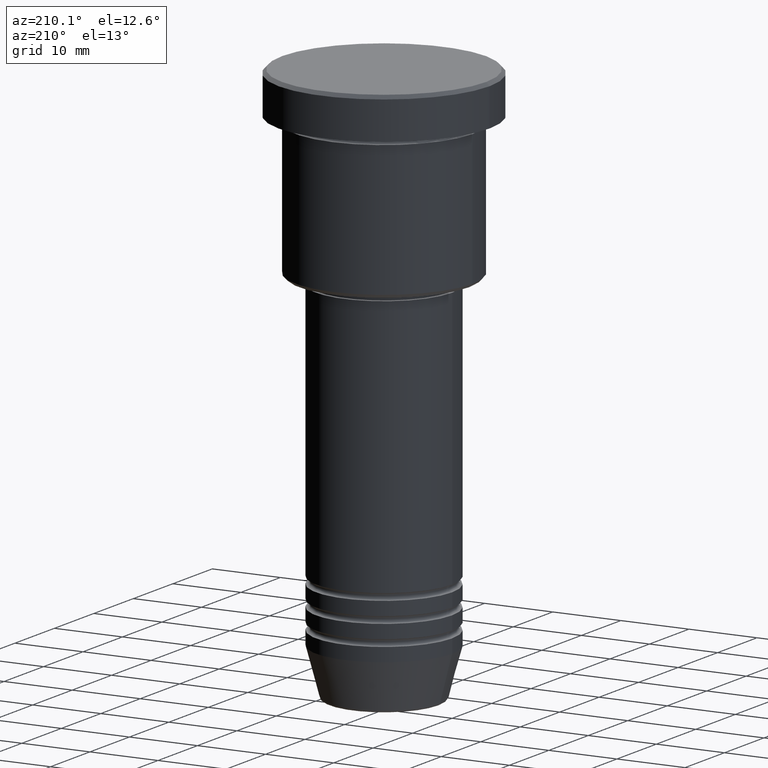
[diagram: clean part render]
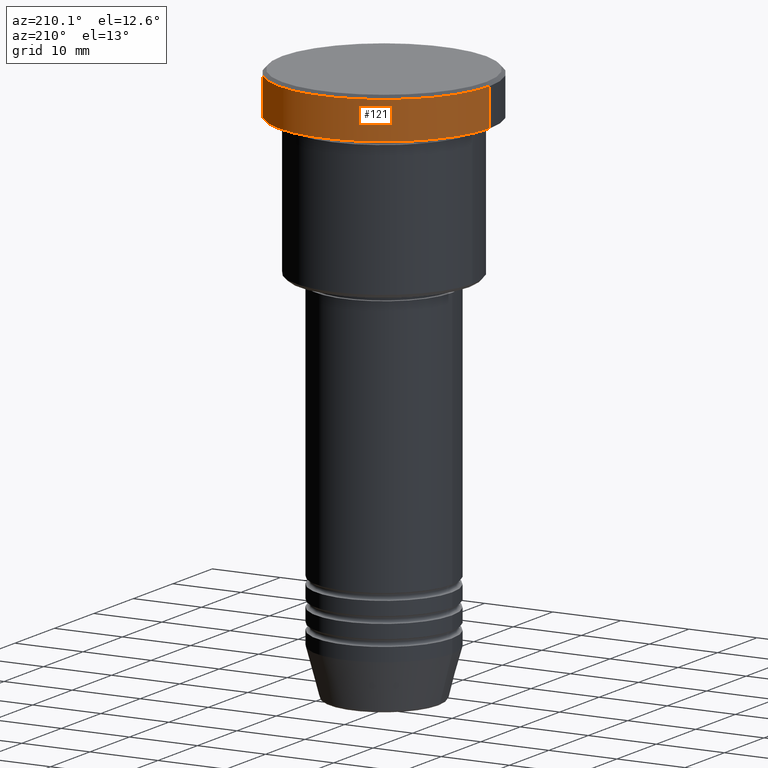
[diagram: same view with one face highlighted and labeled with its STEP entity id]
A machine part, auxiliary view. The second image highlights one B-rep face of the part: STEP entity #121.
In plain terms, the highlighted cylindrical surface (partial cylindrical patch) has radius 15.5 mm, axis along (-0, -0, 1).
Its self-contained STEP definition (entity closure, byte-faithful):
#70 = CYLINDRICAL_SURFACE ( 'NONE', #581, 15.50000000000000000 ) ;
#71 = CARTESIAN_POINT ( 'NONE',  ( 15.50000000000000000, 0.000000000000000000, 0.000000000000000000 ) ) ;
#74 = VERTEX_POINT ( 'NONE', #338 ) ;
#80 = DIRECTION ( 'NONE',  ( -0.000000000000000000, -0.000000000000000000, 1.000000000000000000 ) ) ;
#97 = DIRECTION ( 'NONE',  ( 0.000000000000000000, 0.000000000000000000, -1.000000000000000000 ) ) ;
#121 = ADVANCED_FACE ( 'NONE', ( #529 ), #70, .T. ) ;
#126 = VERTEX_POINT ( 'NONE', #732 ) ;
#162 = CARTESIAN_POINT ( 'NONE',  ( -15.50000000000000000, 1.898202538678397557E-15, 0.000000000000000000 ) ) ;
#165 = ORIENTED_EDGE ( 'NONE', *, *, #469, .T. ) ;
#171 = ORIENTED_EDGE ( 'NONE', *, *, #959, .F. ) ;
#187 = ORIENTED_EDGE ( 'NONE', *, *, #799, .T. ) ;
#275 = VERTEX_POINT ( 'NONE', #573 ) ;
#278 = EDGE_CURVE ( 'NONE', #1041, #126, #839, .T. ) ;
#280 = CARTESIAN_POINT ( 'NONE',  ( 0.000000000000000000, 0.000000000000000000, -5.999999999999995559 ) ) ;
#330 = CARTESIAN_POINT ( 'NONE',  ( -15.50000000000000000, 1.898202538678397557E-15, -0.4999999999999848455 ) ) ;
#338 = CARTESIAN_POINT ( 'NONE',  ( 15.50000000000000000, 0.000000000000000000, -5.999999999999995559 ) ) ;
#353 = ORIENTED_EDGE ( 'NONE', *, *, #278, .T. ) ;
#441 = DIRECTION ( 'NONE',  ( -0.000000000000000000, -0.000000000000000000, 1.000000000000000000 ) ) ;
#469 = EDGE_CURVE ( 'NONE', #275, #1041, #726, .T. ) ;
#529 = FACE_OUTER_BOUND ( 'NONE', #618, .T. ) ;
#573 = CARTESIAN_POINT ( 'NONE',  ( -15.50000000000000000, 1.898202538678397557E-15, -5.999999999999995559 ) ) ;
#581 = AXIS2_PLACEMENT_3D ( 'NONE', #920, #80, #987 ) ;
#602 = VECTOR ( 'NONE', #1080, 1000.000000000000000 ) ;
#618 = EDGE_LOOP ( 'NONE', ( #187, #165, #353, #171 ) ) ;
#621 = DIRECTION ( 'NONE',  ( 1.000000000000000000, 0.000000000000000000, 0.000000000000000000 ) ) ;
#726 = LINE ( 'NONE', #162, #602 ) ;
#732 = CARTESIAN_POINT ( 'NONE',  ( 15.50000000000000000, 0.000000000000000000, -0.4999999999999848455 ) ) ;
#740 = DIRECTION ( 'NONE',  ( -0.000000000000000000, -0.000000000000000000, 1.000000000000000000 ) ) ;
#799 = EDGE_CURVE ( 'NONE', #74, #275, #1012, .T. ) ;
#803 = AXIS2_PLACEMENT_3D ( 'NONE', #927, #97, #834 ) ;
#834 = DIRECTION ( 'NONE',  ( 1.000000000000000000, 0.000000000000000000, 0.000000000000000000 ) ) ;
#839 = CIRCLE ( 'NONE', #803, 15.50000000000000000 ) ;
#920 = CARTESIAN_POINT ( 'NONE',  ( 0.000000000000000000, 0.000000000000000000, 0.000000000000000000 ) ) ;
#927 = CARTESIAN_POINT ( 'NONE',  ( 0.000000000000000000, 0.000000000000000000, -0.4999999999999848455 ) ) ;
#959 = EDGE_CURVE ( 'NONE', #74, #126, #1162, .T. ) ;
#987 = DIRECTION ( 'NONE',  ( 1.000000000000000000, 0.000000000000000000, 0.000000000000000000 ) ) ;
#1012 = CIRCLE ( 'NONE', #1054, 15.50000000000000000 ) ;
#1041 = VERTEX_POINT ( 'NONE', #330 ) ;
#1054 = AXIS2_PLACEMENT_3D ( 'NONE', #280, #740, #621 ) ;
#1080 = DIRECTION ( 'NONE',  ( -0.000000000000000000, -0.000000000000000000, 1.000000000000000000 ) ) ;
#1094 = VECTOR ( 'NONE', #441, 1000.000000000000000 ) ;
#1162 = LINE ( 'NONE', #71, #1094 ) ;